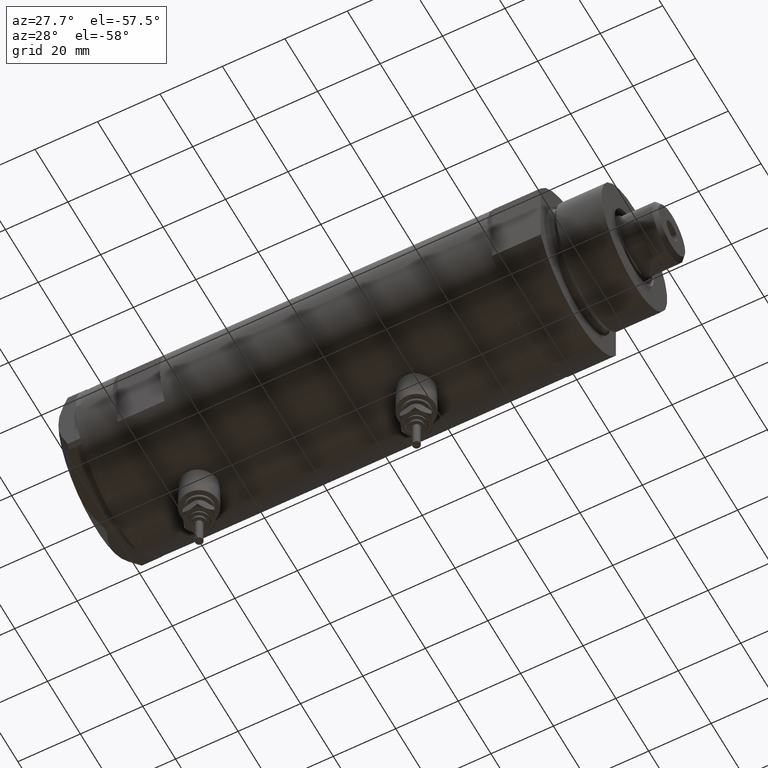
[diagram: clean part render]
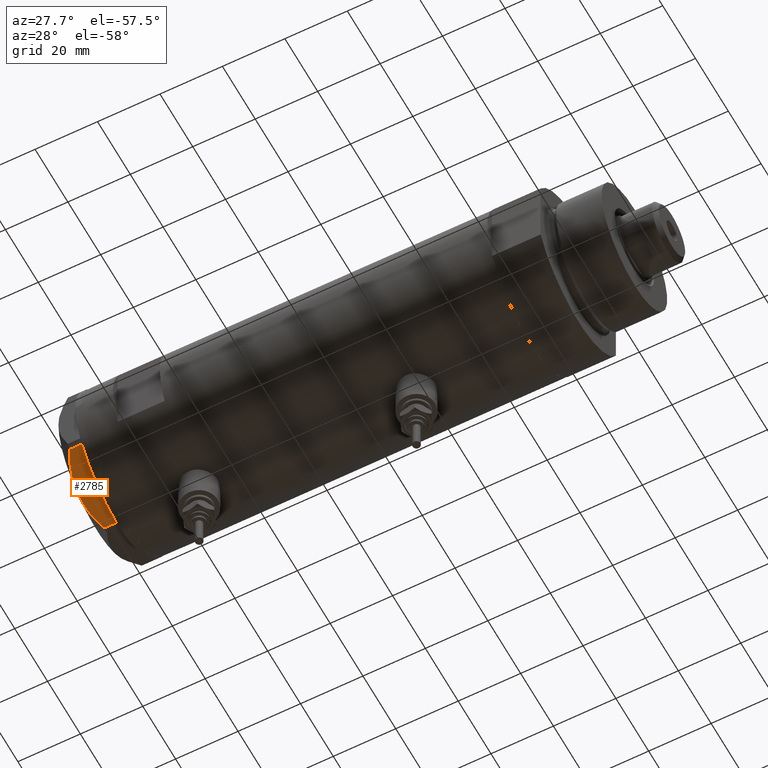
[diagram: same view with one face highlighted and labeled with its STEP entity id]
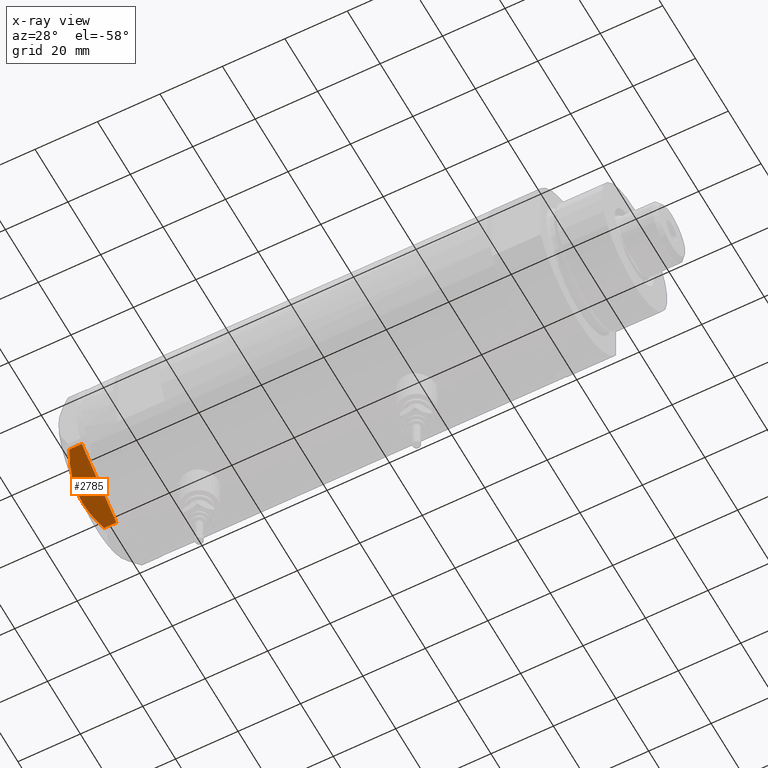
[diagram: x-ray of the same camera — body ghosted, the highlighted face saturated]
A machine part, auxiliary view. The second image highlights one B-rep face of the part: STEP entity #2785.
The next image is the same camera in x-ray: the body ghosted, the highlighted face saturated — about 0% of this face is hidden behind the body in this view.
In plain terms, the highlighted planar face has unit normal (0, 0.5, 0.866).
Its self-contained STEP definition (entity closure, byte-faithful):
#190 = PLANE ( 'NONE',  #5410 ) ;
#206 = CARTESIAN_POINT ( 'NONE',  ( -11.04134848610939201, 20.18338686205100529, 7.000000000000093259 ) ) ;
#264 = CARTESIAN_POINT ( 'NONE',  ( -11.50000000000004441, 19.91858428704211548, 7.000000000000000000 ) ) ;
#393 = DIRECTION ( 'NONE',  ( -0.8660254037844380415, -0.5000000000000008882, 0.000000000000000000 ) ) ;
#471 = EDGE_CURVE ( 'NONE', #1022, #5973, #1568, .T. ) ;
#534 = LINE ( 'NONE', #989, #1776 ) ;
#537 = CARTESIAN_POINT ( 'NONE',  ( -15.11535457301032004, 17.83125835109857249, 6.707651728477005193 ) ) ;
#546 = ORIENTED_EDGE ( 'NONE', *, *, #471, .T. ) ;
#573 = VECTOR ( 'NONE', #1692, 1000.000000000000000 ) ;
#628 = EDGE_CURVE ( 'NONE', #1022, #3053, #4041, .T. ) ;
#713 = FACE_OUTER_BOUND ( 'NONE', #2980, .T. ) ;
#815 = B_SPLINE_CURVE_WITH_KNOTS ( 'NONE', 3,
 ( #4325, #5301, #537, #2401, #1939, #3857, #1484, #2657, #5085, #5558 ),
 .UNSPECIFIED., .F., .F.,
 ( 4, 2, 2, 2, 4 ),
 ( 0.01376519981810312397, 0.01998941321701588891, 0.02154546656674407451, 0.02310151991647226358, 0.02621362661592864518 ),
 .UNSPECIFIED. ) ;
#854 = CARTESIAN_POINT ( 'NONE',  ( 0.000000000000000000, 26.55811238272274366, 0.000000000000000000 ) ) ;
#931 = DIRECTION ( 'NONE',  ( -0.8660254037844380415, -0.5000000000000008882, 0.000000000000000000 ) ) ;
#989 = CARTESIAN_POINT ( 'NONE',  ( 0.000000000000000000, 26.55811238272274366, 0.000000000000000000 ) ) ;
#1022 = VERTEX_POINT ( 'NONE', #4433 ) ;
#1025 = CARTESIAN_POINT ( 'NONE',  ( 0.000000000000000000, 26.55811238272274366, 0.000000000000000000 ) ) ;
#1036 = VERTEX_POINT ( 'NONE', #4788 ) ;
#1128 = ORIENTED_EDGE ( 'NONE', *, *, #2590, .T. ) ;
#1216 = DIRECTION ( 'NONE',  ( 0.000000000000000000, 0.000000000000000000, 1.000000000000000000 ) ) ;
#1305 = EDGE_CURVE ( 'NONE', #3053, #3126, #815, .T. ) ;
#1338 = CARTESIAN_POINT ( 'NONE',  ( -22.03005154776142049, 13.83905619136132437, 7.000000000000000000 ) ) ;
#1405 = ORIENTED_EDGE ( 'NONE', *, *, #1903, .T. ) ;
#1484 = CARTESIAN_POINT ( 'NONE',  ( -19.07486218896994146, 15.54523556316591559, 5.397272853991413655 ) ) ;
#1568 = LINE ( 'NONE', #3052, #573 ) ;
#1614 = CARTESIAN_POINT ( 'NONE',  ( -10.58093321976963175, 20.44920774001128194, 6.981686407609498879 ) ) ;
#1692 = DIRECTION ( 'NONE',  ( 0.000000000000000000, 0.000000000000000000, -1.000000000000000000 ) ) ;
#1743 = LINE ( 'NONE', #1338, #5832 ) ;
#1776 = VECTOR ( 'NONE', #931, 1000.000000000000227 ) ;
#1903 = EDGE_CURVE ( 'NONE', #5973, #1036, #5342, .T. ) ;
#1939 = CARTESIAN_POINT ( 'NONE',  ( -17.77001848220190183, 16.29858742851882170, 5.892128867758444244 ) ) ;
#2058 = CARTESIAN_POINT ( 'NONE',  ( 0.000000000000000000, 26.55811238272274366, 7.000000000000000000 ) ) ;
#2179 = VECTOR ( 'NONE', #393, 1000.000000000000227 ) ;
#2401 = CARTESIAN_POINT ( 'NONE',  ( -17.32831362639716488, 16.55360584592005679, 6.040681765829336136 ) ) ;
#2532 = CARTESIAN_POINT ( 'NONE',  ( -0.9699484522384357321, 25.99811238272282310, 3.983800287807549356 ) ) ;
#2590 = EDGE_CURVE ( 'NONE', #1036, #5007, #534, .T. ) ;
#2593 = DIRECTION ( 'NONE',  ( 0.5000000000000008882, -0.8660254037844381525, 0.000000000000000000 ) ) ;
#2609 = CARTESIAN_POINT ( 'NONE',  ( -7.836767740116578729, 22.03355241838985279, 6.637313967156947214 ) ) ;
#2620 = DIRECTION ( 'NONE',  ( 0.8660254037844381525, 0.5000000000000008882, 0.000000000000000000 ) ) ;
#2657 = CARTESIAN_POINT ( 'NONE',  ( -20.35958612119326006, 14.80349985506242305, 4.844201024438386405 ) ) ;
#2785 = ADVANCED_FACE ( 'NONE', ( #713 ), #190, .F. ) ;
#2876 = DIRECTION ( 'NONE',  ( -0.8660254037844380415, -0.5000000000000008882, 0.000000000000000000 ) ) ;
#2980 = EDGE_LOOP ( 'NONE', ( #4502, #4360, #5475, #5149, #546, #1405, #1128 ) ) ;
#3052 = CARTESIAN_POINT ( 'NONE',  ( -0.9699484522385776186, 25.99811238272273783, 7.000000000000000000 ) ) ;
#3053 = VERTEX_POINT ( 'NONE', #4537 ) ;
#3126 = VERTEX_POINT ( 'NONE', #4631 ) ;
#3220 = LINE ( 'NONE', #854, #2179 ) ;
#3301 = CARTESIAN_POINT ( 'NONE',  ( -22.03005154776141694, 13.83905619136132614, 0.000000000000000000 ) ) ;
#3590 = CARTESIAN_POINT ( 'NONE',  ( -22.00000000000008171, 13.85640646055089498, 0.000000000000000000 ) ) ;
#3857 = CARTESIAN_POINT ( 'NONE',  ( -18.64279229058394449, 15.79469123530781083, 5.570552255229723748 ) ) ;
#4041 = B_SPLINE_CURVE_WITH_KNOTS ( 'NONE', 3,
 ( #2532, #4941, #4043, #5041, #2609, #6060, #4489, #1614, #206, #264 ),
 .UNSPECIFIED., .F., .F.,
 ( 4, 2, 2, 2, 4 ),
 ( 0.001228959670438516723, 0.007497079744270820564, 0.01063113978118697227, 0.01219816979964504812, 0.01376519981810312397 ),
 .UNSPECIFIED. ) ;
#4043 = CARTESIAN_POINT ( 'NONE',  ( -4.320186229909879216, 24.06385169993494699, 5.629374868826105605 ) ) ;
#4155 = VERTEX_POINT ( 'NONE', #3301 ) ;
#4325 = CARTESIAN_POINT ( 'NONE',  ( -11.50000000000004441, 19.91858428704211548, 7.000000000000000000 ) ) ;
#4360 = ORIENTED_EDGE ( 'NONE', *, *, #5006, .T. ) ;
#4433 = CARTESIAN_POINT ( 'NONE',  ( -0.9699484522384357321, 25.99811238272282310, 3.983800287807549356 ) ) ;
#4489 = CARTESIAN_POINT ( 'NONE',  ( -9.656518383329846245, 20.98291889467267879, 6.907842277728433622 ) ) ;
#4502 = ORIENTED_EDGE ( 'NONE', *, *, #5054, .T. ) ;
#4537 = CARTESIAN_POINT ( 'NONE',  ( -11.50000000000004441, 19.91858428704211548, 7.000000000000000000 ) ) ;
#4631 = CARTESIAN_POINT ( 'NONE',  ( -22.03005154776142760, 13.83905619136132081, 3.983800287807629292 ) ) ;
#4788 = CARTESIAN_POINT ( 'NONE',  ( -0.9999999999999089617, 25.98076211353316367, 0.000000000000000000 ) ) ;
#4941 = CARTESIAN_POINT ( 'NONE',  ( -2.626494320835633278, 25.04170517956325881, 4.877782426143455474 ) ) ;
#5006 = EDGE_CURVE ( 'NONE', #4155, #3126, #1743, .T. ) ;
#5007 = VERTEX_POINT ( 'NONE', #3590 ) ;
#5041 = CARTESIAN_POINT ( 'NONE',  ( -6.946777556903625417, 22.54738849024398206, 6.426899937603785418 ) ) ;
#5054 = EDGE_CURVE ( 'NONE', #5007, #4155, #3220, .T. ) ;
#5085 = CARTESIAN_POINT ( 'NONE',  ( -21.20080365460317751, 14.31782268570117367, 4.431317509509394625 ) ) ;
#5109 = CARTESIAN_POINT ( 'NONE',  ( -0.9699484522385772856, 25.99811238272273783, 0.000000000000000000 ) ) ;
#5149 = ORIENTED_EDGE ( 'NONE', *, *, #628, .F. ) ;
#5292 = VECTOR ( 'NONE', #2876, 1000.000000000000227 ) ;
#5301 = CARTESIAN_POINT ( 'NONE',  ( -13.32175508098984373, 18.86679350063498362, 7.000000000000093259 ) ) ;
#5342 = LINE ( 'NONE', #1025, #5292 ) ;
#5410 = AXIS2_PLACEMENT_3D ( 'NONE', #2058, #2593, #2620 ) ;
#5475 = ORIENTED_EDGE ( 'NONE', *, *, #1305, .F. ) ;
#5558 = CARTESIAN_POINT ( 'NONE',  ( -22.03005154776142760, 13.83905619136132081, 3.983800287807629292 ) ) ;
#5832 = VECTOR ( 'NONE', #1216, 1000.000000000000000 ) ;
#5973 = VERTEX_POINT ( 'NONE', #5109 ) ;
#6060 = CARTESIAN_POINT ( 'NONE',  ( -9.197898616902923763, 21.24770314027494678, 6.852712638955800628 ) ) ;